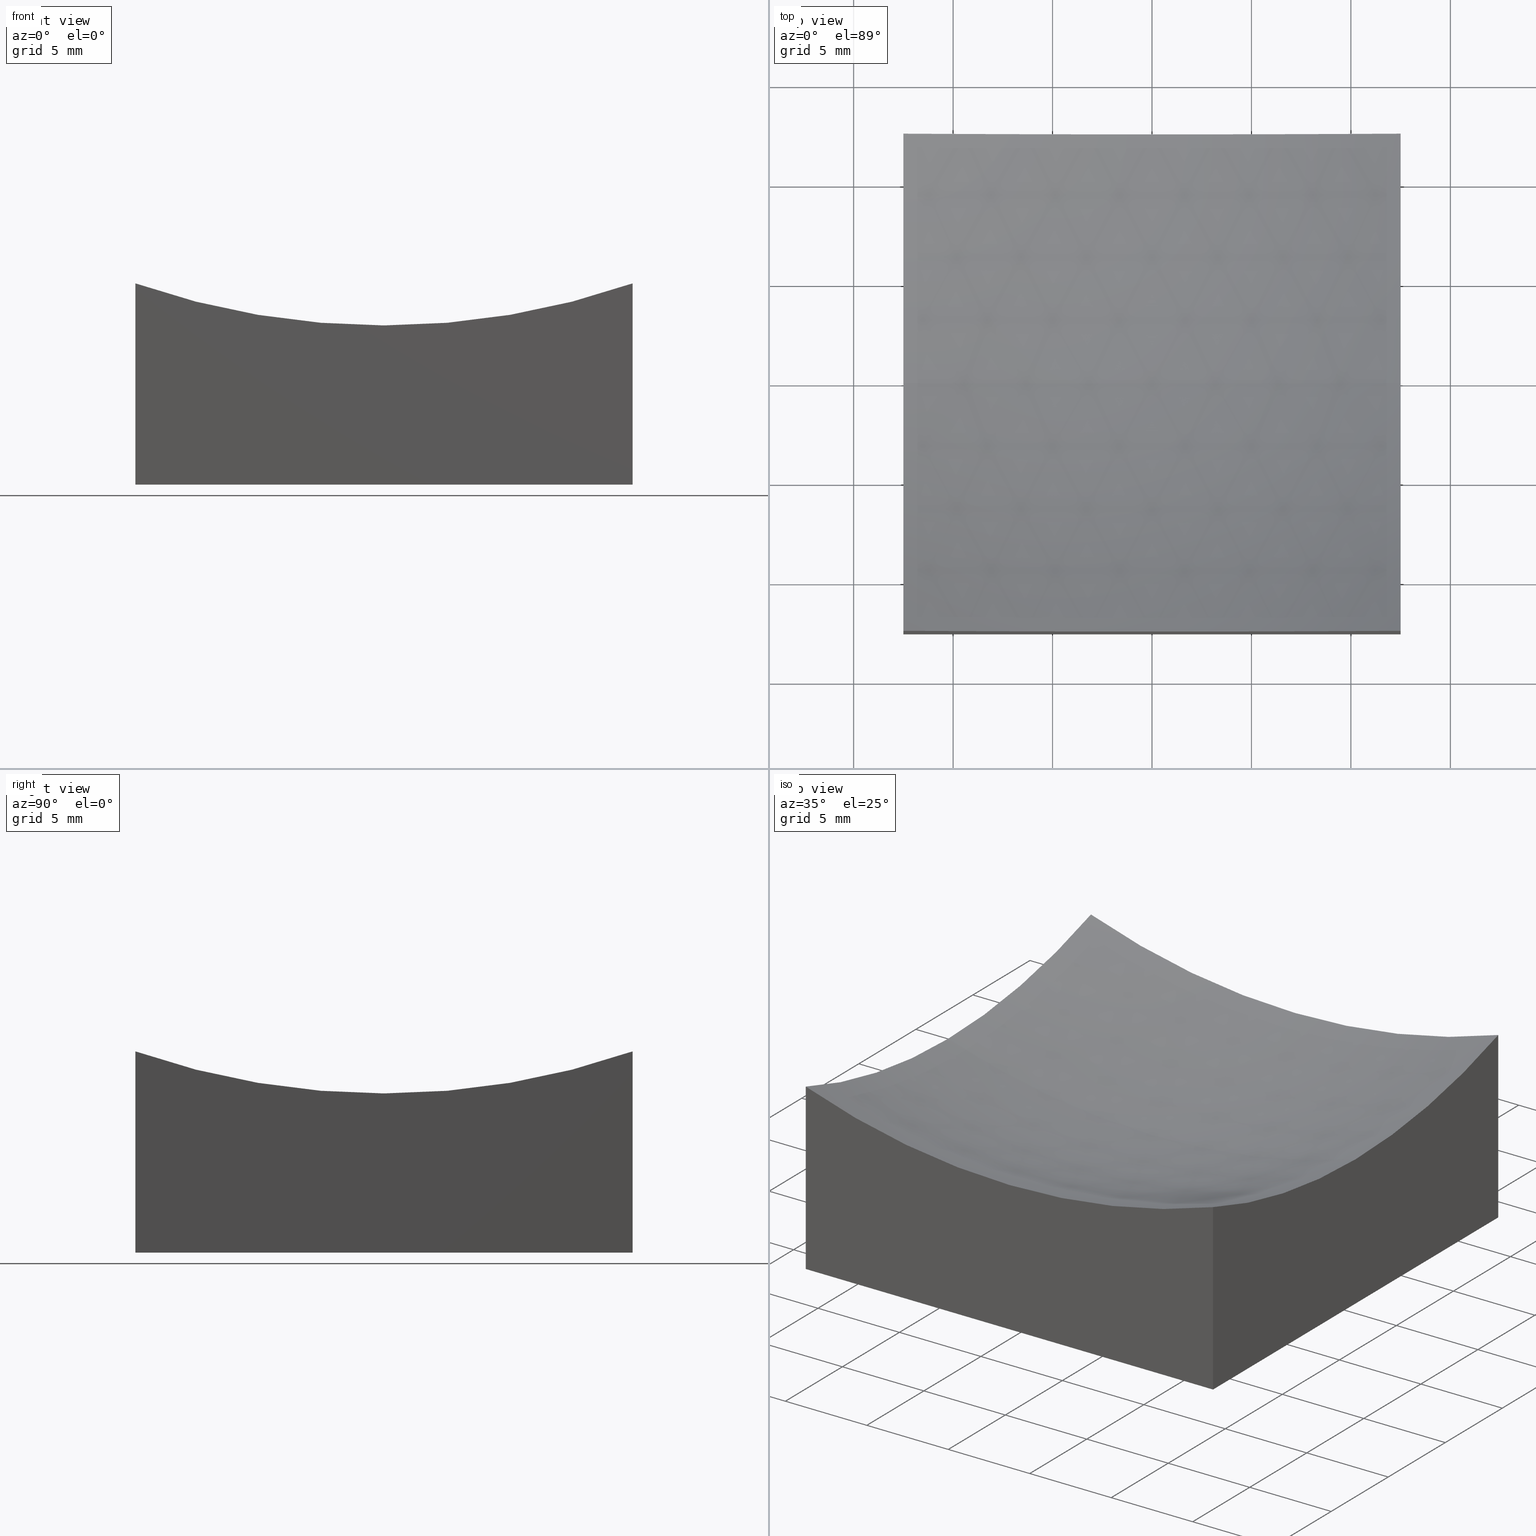
[diagram: canonical four-view strip — front | top / right | iso, engineering-drawing reading convention]
A machine part, canonical four-view strip (front | top / right | iso — engineering-drawing reading convention). The complete STEP part file that produces these views, byte-faithful:
ISO-10303-21;
HEADER;
FILE_DESCRIPTION (( 'STEP AP214' ),
    '1' );
FILE_NAME ('270031.STEP',
    '2020-06-05T05:34:53',
    ( '' ),
    ( '' ),
    'SwSTEP 2.0',
    'SolidWorks 2019',
    '' );
FILE_SCHEMA (( 'AUTOMOTIVE_DESIGN' ));
ENDSEC;

DATA;
#1 =( LENGTH_UNIT ( ) NAMED_UNIT ( * ) SI_UNIT ( .MILLI., .METRE. ) );
#2 = ORIENTED_EDGE ( 'NONE', *, *, #120, .T. ) ;
#3 = ORIENTED_EDGE ( 'NONE', *, *, #26, .F. ) ;
#4 = FILL_AREA_STYLE_COLOUR ( '', #202 ) ;
#5 = AXIS2_PLACEMENT_3D ( 'NONE', #14, #232, #54 ) ;
#6 = EDGE_LOOP ( 'NONE', ( #153, #200, #25, #47, #182 ) ) ;
#7 = DIRECTION ( 'NONE',  ( -0.0000000000000000000, 1.000000000000000000, 0.0000000000000000000 ) ) ;
#8 = PRODUCT_CONTEXT ( 'NONE', #136, 'mechanical' ) ;
#9 = EDGE_LOOP ( 'NONE', ( #102, #162, #160, #222, #62 ) ) ;
#10 = PRESENTATION_LAYER_ASSIGNMENT (  '', '', ( #212 ) ) ;
#11 = CARTESIAN_POINT ( 'NONE',  ( 12.50000000000000000, 12.50000000000000000, 0.0000000000000000000 ) ) ;
#12 = DIRECTION ( 'NONE',  ( 1.000000000000000000, 0.0000000000000000000, 0.0000000000000000000 ) ) ;
#13 = PRESENTATION_STYLE_ASSIGNMENT (( #191 ) ) ;
#14 = CARTESIAN_POINT ( 'NONE',  ( -12.49999999999999645, -12.50000000000000000, 20.00000000000000000 ) ) ;
#15 = AXIS2_PLACEMENT_3D ( 'NONE', #89, #35, #106 ) ;
#16 = DIRECTION ( 'NONE',  ( 0.0000000000000000000, 1.000000000000000000, 0.0000000000000000000 ) ) ;
#17 = APPLICATION_CONTEXT ( 'automotive_design' ) ;
#18 = AXIS2_PLACEMENT_3D ( 'NONE', #183, #7, #84 ) ;
#19 = CARTESIAN_POINT ( 'NONE',  ( 5.633375276077824704E-15, 0.0000000000000000000, 46.00000000000000000 ) ) ;
#21 = LINE ( 'NONE', #163, #55 ) ;
#20 = ADVANCED_BREP_SHAPE_REPRESENTATION ( '270031', ( #151, #87 ), #27 ) ;
#22 = CIRCLE ( 'NONE', #63, 37.99671038392666844 ) ;
#23 = PRESENTATION_STYLE_ASSIGNMENT (( #40 ) ) ;
#24 = VERTEX_POINT ( 'NONE', #143 ) ;
#25 = ORIENTED_EDGE ( 'NONE', *, *, #154, .F. ) ;
#26 = EDGE_CURVE ( 'NONE', #132, #46, #234, .T. ) ;
#27 =( GEOMETRIC_REPRESENTATION_CONTEXT ( 3 ) GLOBAL_UNCERTAINTY_ASSIGNED_CONTEXT ( ( #38 ) ) GLOBAL_UNIT_ASSIGNED_CONTEXT ( ( #43, #155, #65 ) ) REPRESENTATION_CONTEXT ( 'NONE', 'WORKASPACE' ) );
#28 = ORIENTED_EDGE ( 'NONE', *, *, #56, .F. ) ;
#29 = ORIENTED_EDGE ( 'NONE', *, *, #226, .T. ) ;
#30 = CARTESIAN_POINT ( 'NONE',  ( 12.50000000000000355, -12.50000000000000000, 20.00000000000000000 ) ) ;
#31 = SHAPE_DEFINITION_REPRESENTATION ( #111, #20 ) ;
#32 =( GEOMETRIC_REPRESENTATION_CONTEXT ( 3 ) GLOBAL_UNCERTAINTY_ASSIGNED_CONTEXT ( ( #138 ) ) GLOBAL_UNIT_ASSIGNED_CONTEXT ( ( #231, #206, #188 ) ) REPRESENTATION_CONTEXT ( 'NONE', 'WORKASPACE' ) );
#33 = DIRECTION ( 'NONE',  ( 1.387778780781445676E-16, -1.000000000000000000, 0.0000000000000000000 ) ) ;
#34 = FILL_AREA_STYLE ('',( #71 ) ) ;
#35 = DIRECTION ( 'NONE',  ( 0.0000000000000000000, -1.000000000000000000, -0.0000000000000000000 ) ) ;
#36 = ADVANCED_FACE ( 'NONE', ( #220 ), #203, .F. ) ;
#37 = EDGE_CURVE ( 'NONE', #132, #81, #22, .T. ) ;
#38 = UNCERTAINTY_MEASURE_WITH_UNIT (LENGTH_MEASURE( 1.000000000000000082E-05 ), #43, 'distance_accuracy_value', 'NONE');
#39 = VECTOR ( 'NONE', #237, 1000.000000000000000 ) ;
#40 = SURFACE_STYLE_USAGE ( .BOTH. , #195 ) ;
#41 = CARTESIAN_POINT ( 'NONE',  ( -12.49999999999999645, -12.50000000000000000, 0.0000000000000000000 ) ) ;
#42 = EDGE_CURVE ( 'NONE', #140, #184, #238, .T. ) ;
#43 =( LENGTH_UNIT ( ) NAMED_UNIT ( * ) SI_UNIT ( .MILLI., .METRE. ) );
#44 = PRODUCT_DEFINITION_CONTEXT ( 'detailed design', #17, 'design' ) ;
#45 = AXIS2_PLACEMENT_3D ( 'NONE', #251, #59, #218 ) ;
#46 = VERTEX_POINT ( 'NONE', #85 ) ;
#47 = ORIENTED_EDGE ( 'NONE', *, *, #37, .F. ) ;
#48 = CARTESIAN_POINT ( 'NONE',  ( 12.50000000000000178, 1.734723475976806700E-15, 46.00000000000000000 ) ) ;
#49 = VERTEX_POINT ( 'NONE', #166 ) ;
#50 = DIRECTION ( 'NONE',  ( 0.0000000000000000000, 0.0000000000000000000, 1.000000000000000000 ) ) ;
#51 = MECHANICAL_DESIGN_GEOMETRIC_PRESENTATION_REPRESENTATION (  '', ( #212 ), #32 ) ;
#52 = CARTESIAN_POINT ( 'NONE',  ( -12.50000000000000000, 12.50000000000000000, 0.0000000000000000000 ) ) ;
#53 = FACE_OUTER_BOUND ( 'NONE', #144, .T. ) ;
#54 = DIRECTION ( 'NONE',  ( 0.0000000000000000000, -0.0000000000000000000, 1.000000000000000000 ) ) ;
#55 = VECTOR ( 'NONE', #176, 1000.000000000000000 ) ;
#56 = EDGE_CURVE ( 'NONE', #132, #216, #127, .T. ) ;
#57 = EDGE_LOOP ( 'NONE', ( #145, #205, #193, #126 ) ) ;
#58 = UNCERTAINTY_MEASURE_WITH_UNIT (LENGTH_MEASURE( 1.000000000000000082E-05 ), #1, 'distance_accuracy_value', 'NONE');
#59 = DIRECTION ( 'NONE',  ( 1.000000000000000000, 1.387778780781445676E-16, -0.0000000000000000000 ) ) ;
#60 = MECHANICAL_DESIGN_GEOMETRIC_PRESENTATION_REPRESENTATION (  '', ( #171 ), #196 ) ;
#61 = LINE ( 'NONE', #139, #149 ) ;
#62 = ORIENTED_EDGE ( 'NONE', *, *, #146, .T. ) ;
#63 = AXIS2_PLACEMENT_3D ( 'NONE', #124, #121, #50 ) ;
#64 = ORIENTED_EDGE ( 'NONE', *, *, #146, .F. ) ;
#65 =( NAMED_UNIT ( * ) SI_UNIT ( $, .STERADIAN. ) SOLID_ANGLE_UNIT ( ) );
#66 = ORIENTED_EDGE ( 'NONE', *, *, #133, .T. ) ;
#67 = DIRECTION ( 'NONE',  ( 1.000000000000000000, 1.387778780781445676E-16, -0.0000000000000000000 ) ) ;
#68 = PRESENTATION_LAYER_ASSIGNMENT (  '', '', ( #171 ) ) ;
#69 = ORIENTED_EDGE ( 'NONE', *, *, #226, .F. ) ;
#70 = PRODUCT_RELATED_PRODUCT_CATEGORY ( 'part', '', ( #129 ) ) ;
#71 = FILL_AREA_STYLE_COLOUR ( '', #82 ) ;
#72 = PLANE ( 'NONE',  #112 ) ;
#73 = VECTOR ( 'NONE', #157, 1000.000000000000000 ) ;
#74 = CARTESIAN_POINT ( 'NONE',  ( 12.50000000000000355, -12.50000000000000000, 10.11824976398168552 ) ) ;
#75 = CARTESIAN_POINT ( 'NONE',  ( 0.0000000000000000000, 0.0000000000000000000, 0.0000000000000000000 ) ) ;
#76 = CIRCLE ( 'NONE', #96, 37.99671038392665423 ) ;
#77 = ADVANCED_FACE ( 'NONE', ( #128 ), #150, .T. ) ;
#78 = FILL_AREA_STYLE ('',( #4 ) ) ;
#79 = VECTOR ( 'NONE', #97, 1000.000000000000000 ) ;
#80 = DIRECTION ( 'NONE',  ( 1.000000000000000000, 1.387778780781445676E-16, -0.0000000000000000000 ) ) ;
#81 = VERTEX_POINT ( 'NONE', #228 ) ;
#82 = COLOUR_RGB ( '',1.000000000000000000, 1.000000000000000000, 1.000000000000000000 ) ;
#83 = ORIENTED_EDGE ( 'NONE', *, *, #194, .T. ) ;
#84 = DIRECTION ( 'NONE',  ( 1.000000000000000000, 0.0000000000000000000, 0.0000000000000000000 ) ) ;
#85 = CARTESIAN_POINT ( 'NONE',  ( 12.50000000000000178, 0.0000000000000000000, 8.003289616073335111 ) ) ;
#86 = DIRECTION ( 'NONE',  ( 0.0000000000000000000, 0.0000000000000000000, 1.000000000000000000 ) ) ;
#87 = AXIS2_PLACEMENT_3D ( 'NONE', #204, #86, #12 ) ;
#88 = DIRECTION ( 'NONE',  ( 1.000000000000000000, 1.387778780781445676E-16, -0.0000000000000000000 ) ) ;
#89 = CARTESIAN_POINT ( 'NONE',  ( 5.633375276077824704E-15, 0.0000000000000000000, 46.00000000000000000 ) ) ;
#90 = ADVANCED_FACE ( 'NONE', ( #186 ), #230, .F. ) ;
#91 = DIRECTION ( 'NONE',  ( 1.000000000000000000, 1.387778780781445676E-16, -0.0000000000000000000 ) ) ;
#92 = DIRECTION ( 'NONE',  ( -1.387778780781445676E-16, 1.000000000000000000, 0.0000000000000000000 ) ) ;
#93 = CLOSED_SHELL ( 'NONE', ( #36, #158, #90, #190, #77, #185, #242 ) ) ;
#94 = CARTESIAN_POINT ( 'NONE',  ( -12.49999999999999822, -1.734723475976807883E-15, 46.00000000000000000 ) ) ;
#95 = DIRECTION ( 'NONE',  ( 0.0000000000000000000, 1.000000000000000000, 0.0000000000000000000 ) ) ;
#96 = AXIS2_PLACEMENT_3D ( 'NONE', #94, #80, #217 ) ;
#97 = DIRECTION ( 'NONE',  ( 1.000000000000000000, 0.0000000000000000000, 0.0000000000000000000 ) ) ;
#98 = VERTEX_POINT ( 'NONE', #11 ) ;
#99 = APPLICATION_PROTOCOL_DEFINITION ( 'draft international standard', 'automotive_design', 1998, #136 ) ;
#100 = ORIENTED_EDGE ( 'NONE', *, *, #56, .T. ) ;
#101 = AXIS2_PLACEMENT_3D ( 'NONE', #233, #91, #104 ) ;
#102 = ORIENTED_EDGE ( 'NONE', *, *, #120, .F. ) ;
#103 = ORIENTED_EDGE ( 'NONE', *, *, #252, .F. ) ;
#104 = DIRECTION ( 'NONE',  ( -1.387778780781445676E-16, 1.000000000000000000, 0.0000000000000000000 ) ) ;
#105 = AXIS2_PLACEMENT_3D ( 'NONE', #19, #221, #235 ) ;
#106 = DIRECTION ( 'NONE',  ( 0.0000000000000000000, 0.0000000000000000000, -1.000000000000000000 ) ) ;
#107 = DIRECTION ( 'NONE',  ( 1.000000000000000000, 1.387778780781445676E-16, -0.0000000000000000000 ) ) ;
#108 = VECTOR ( 'NONE', #178, 1000.000000000000000 ) ;
#109 = FACE_OUTER_BOUND ( 'NONE', #57, .T. ) ;
#110 = ORIENTED_EDGE ( 'NONE', *, *, #229, .T. ) ;
#111 = PRODUCT_DEFINITION_SHAPE ( 'NONE', 'NONE',  #250 ) ;
#112 = AXIS2_PLACEMENT_3D ( 'NONE', #209, #16, #134 ) ;
#113 = VERTEX_POINT ( 'NONE', #168 ) ;
#114 = LINE ( 'NONE', #175, #73 ) ;
#115 = CARTESIAN_POINT ( 'NONE',  ( 12.50000000000000000, 12.50000000000000000, 0.0000000000000000000 ) ) ;
#116 = SURFACE_STYLE_FILL_AREA ( #78 ) ;
#117 = ORIENTED_EDGE ( 'NONE', *, *, #37, .T. ) ;
#118 = PRODUCT_DEFINITION_FORMATION_WITH_SPECIFIED_SOURCE ( '�κ�', '', #129, .NOT_KNOWN. ) ;
#119 =( NAMED_UNIT ( * ) SI_UNIT ( $, .STERADIAN. ) SOLID_ANGLE_UNIT ( ) );
#120 = EDGE_CURVE ( 'NONE', #81, #113, #189, .T. ) ;
#121 = DIRECTION ( 'NONE',  ( 0.0000000000000000000, 1.000000000000000000, 0.0000000000000000000 ) ) ;
#122 = FACE_OUTER_BOUND ( 'NONE', #180, .T. ) ;
#123 = ORIENTED_EDGE ( 'NONE', *, *, #215, .F. ) ;
#124 = CARTESIAN_POINT ( 'NONE',  ( 5.633375276077824704E-15, -12.50000000000000000, 46.00000000000000000 ) ) ;
#125 = AXIS2_PLACEMENT_3D ( 'NONE', #247, #107, #169 ) ;
#126 = ORIENTED_EDGE ( 'NONE', *, *, #208, .F. ) ;
#127 = LINE ( 'NONE', #30, #108 ) ;
#128 = FACE_OUTER_BOUND ( 'NONE', #236, .T. ) ;
#129 = PRODUCT ( '270031', '270031', '', ( #8 ) ) ;
#130 = PLANE ( 'NONE',  #174 ) ;
#131 = CARTESIAN_POINT ( 'NONE',  ( -12.50000000000000000, 12.50000000000000000, 10.11824976398169262 ) ) ;
#132 = VERTEX_POINT ( 'NONE', #74 ) ;
#133 = EDGE_CURVE ( 'NONE', #140, #46, #161, .T. ) ;
#134 = DIRECTION ( 'NONE',  ( 0.0000000000000000000, -0.0000000000000000000, 1.000000000000000000 ) ) ;
#135 = DIRECTION ( 'NONE',  ( -0.0000000000000000000, -0.0000000000000000000, -1.000000000000000000 ) ) ;
#136 = APPLICATION_CONTEXT ( 'automotive_design' ) ;
#137 = CARTESIAN_POINT ( 'NONE',  ( 5.633375276077824704E-15, 12.50000000000000000, 46.00000000000000000 ) ) ;
#138 = UNCERTAINTY_MEASURE_WITH_UNIT (LENGTH_MEASURE( 1.000000000000000082E-05 ), #231, 'distance_accuracy_value', 'NONE');
#139 = CARTESIAN_POINT ( 'NONE',  ( -12.50000000000000000, 12.50000000000000000, 20.00000000000000000 ) ) ;
#140 = VERTEX_POINT ( 'NONE', #245 ) ;
#141 = LINE ( 'NONE', #41, #79 ) ;
#142 = VERTEX_POINT ( 'NONE', #131 ) ;
#143 = CARTESIAN_POINT ( 'NONE',  ( 12.50000000000000000, 12.50000000000000000, 10.11824976398168552 ) ) ;
#144 = EDGE_LOOP ( 'NONE', ( #110, #29, #244, #64 ) ) ;
#145 = ORIENTED_EDGE ( 'NONE', *, *, #197, .F. ) ;
#146 = EDGE_CURVE ( 'NONE', #49, #113, #211, .T. ) ;
#147 = SURFACE_SIDE_STYLE ('',( #246 ) ) ;
#148 = CARTESIAN_POINT ( 'NONE',  ( 12.50000000000000000, 12.50000000000000000, 20.00000000000000000 ) ) ;
#149 = VECTOR ( 'NONE', #135, 1000.000000000000000 ) ;
#150 = PLANE ( 'NONE',  #167 ) ;
#151 = MANIFOLD_SOLID_BREP ( '�г�-��ת2', #93 ) ;
#152 = VECTOR ( 'NONE', #33, 1000.000000000000000 ) ;
#153 = ORIENTED_EDGE ( 'NONE', *, *, #133, .F. ) ;
#154 = EDGE_CURVE ( 'NONE', #81, #184, #213, .T. ) ;
#155 =( NAMED_UNIT ( * ) PLANE_ANGLE_UNIT ( ) SI_UNIT ( $, .RADIAN. ) );
#156 = CIRCLE ( 'NONE', #45, 37.99671038392666134 ) ;
#157 = DIRECTION ( 'NONE',  ( 1.000000000000000000, 0.0000000000000000000, 0.0000000000000000000 ) ) ;
#158 = ADVANCED_FACE ( 'NONE', ( #109 ), #72, .T. ) ;
#159 =( NAMED_UNIT ( * ) PLANE_ANGLE_UNIT ( ) SI_UNIT ( $, .RADIAN. ) );
#160 = ORIENTED_EDGE ( 'NONE', *, *, #215, .T. ) ;
#161 = CIRCLE ( 'NONE', #15, 40.00000000000000000 ) ;
#162 = ORIENTED_EDGE ( 'NONE', *, *, #154, .T. ) ;
#163 = CARTESIAN_POINT ( 'NONE',  ( 12.50000000000000000, 12.50000000000000000, 20.00000000000000000 ) ) ;
#164 = ORIENTED_EDGE ( 'NONE', *, *, #197, .T. ) ;
#165 = DIRECTION ( 'NONE',  ( 1.224646799147353207E-16, 1.000000000000000000, -5.143359600162762800E-33 ) ) ;
#166 = CARTESIAN_POINT ( 'NONE',  ( -12.50000000000000000, 12.50000000000000000, 0.0000000000000000000 ) ) ;
#167 = AXIS2_PLACEMENT_3D ( 'NONE', #148, #88, #92 ) ;
#168 = CARTESIAN_POINT ( 'NONE',  ( -12.49999999999999645, -12.50000000000000000, 0.0000000000000000000 ) ) ;
#169 = DIRECTION ( 'NONE',  ( -1.369637101566530917E-16, 1.000000000000000000, 0.0000000000000000000 ) ) ;
#170 = CARTESIAN_POINT ( 'NONE',  ( -12.49999999999999822, 1.530808498934191521E-15, 8.003289616073342216 ) ) ;
#171 = STYLED_ITEM ( 'NONE', ( #23 ), #20 ) ;
#172 = CARTESIAN_POINT ( 'NONE',  ( -12.49999999999999645, -12.50000000000000000, 20.00000000000000000 ) ) ;
#173 = PLANE ( 'NONE',  #5 ) ;
#174 = AXIS2_PLACEMENT_3D ( 'NONE', #75, #210, #192 ) ;
#175 = CARTESIAN_POINT ( 'NONE',  ( -12.50000000000000000, 12.50000000000000000, 0.0000000000000000000 ) ) ;
#176 = DIRECTION ( 'NONE',  ( -0.0000000000000000000, -0.0000000000000000000, -1.000000000000000000 ) ) ;
#177 = CARTESIAN_POINT ( 'NONE',  ( 12.50000000000000355, -12.50000000000000000, 0.0000000000000000000 ) ) ;
#178 = DIRECTION ( 'NONE',  ( -0.0000000000000000000, -0.0000000000000000000, -1.000000000000000000 ) ) ;
#179 = DIRECTION ( 'NONE',  ( 0.0000000000000000000, 0.0000000000000000000, 1.000000000000000000 ) ) ;
#180 = EDGE_LOOP ( 'NONE', ( #223, #66, #83, #164, #123 ) ) ;
#181 = VECTOR ( 'NONE', #214, 1000.000000000000000 ) ;
#182 = ORIENTED_EDGE ( 'NONE', *, *, #26, .T. ) ;
#183 = CARTESIAN_POINT ( 'NONE',  ( 5.633375276077824704E-15, 0.0000000000000000000, 46.00000000000000000 ) ) ;
#184 = VERTEX_POINT ( 'NONE', #170 ) ;
#185 = ADVANCED_FACE ( 'NONE', ( #53 ), #130, .T. ) ;
#186 = FACE_OUTER_BOUND ( 'NONE', #9, .T. ) ;
#187 = CIRCLE ( 'NONE', #248, 37.99671038392666844 ) ;
#188 =( NAMED_UNIT ( * ) SI_UNIT ( $, .STERADIAN. ) SOLID_ANGLE_UNIT ( ) );
#189 = LINE ( 'NONE', #172, #181 ) ;
#190 = ADVANCED_FACE ( 'NONE', ( #249 ), #173, .F. ) ;
#191 = SURFACE_STYLE_USAGE ( .BOTH. , #147 ) ;
#192 = DIRECTION ( 'NONE',  ( -1.000000000000000000, 0.0000000000000000000, -0.0000000000000000000 ) ) ;
#193 = ORIENTED_EDGE ( 'NONE', *, *, #229, .F. ) ;
#194 = EDGE_CURVE ( 'NONE', #46, #24, #156, .T. ) ;
#195 = SURFACE_SIDE_STYLE ('',( #116 ) ) ;
#196 =( GEOMETRIC_REPRESENTATION_CONTEXT ( 3 ) GLOBAL_UNCERTAINTY_ASSIGNED_CONTEXT ( ( #58 ) ) GLOBAL_UNIT_ASSIGNED_CONTEXT ( ( #1, #159, #119 ) ) REPRESENTATION_CONTEXT ( 'NONE', 'WORKASPACE' ) );
#197 = EDGE_CURVE ( 'NONE', #24, #142, #187, .T. ) ;
#198 = CARTESIAN_POINT ( 'NONE',  ( 5.633375276077824704E-15, 0.0000000000000000000, 46.00000000000000000 ) ) ;
#199 = SPHERICAL_SURFACE ( 'NONE', #105, 40.00000000000000000 ) ;
#200 = ORIENTED_EDGE ( 'NONE', *, *, #42, .T. ) ;
#201 = APPLICATION_PROTOCOL_DEFINITION ( 'draft international standard', 'automotive_design', 1998, #17 ) ;
#202 = COLOUR_RGB ( '',1.000000000000000000, 1.000000000000000000, 1.000000000000000000 ) ;
#203 = SPHERICAL_SURFACE ( 'NONE', #18, 40.00000000000000000 ) ;
#204 = CARTESIAN_POINT ( 'NONE',  ( 0.0000000000000000000, 0.0000000000000000000, 0.0000000000000000000 ) ) ;
#205 = ORIENTED_EDGE ( 'NONE', *, *, #252, .T. ) ;
#206 =( NAMED_UNIT ( * ) PLANE_ANGLE_UNIT ( ) SI_UNIT ( $, .RADIAN. ) );
#207 = AXIS2_PLACEMENT_3D ( 'NONE', #198, #165, #243 ) ;
#208 = EDGE_CURVE ( 'NONE', #142, #49, #61, .T. ) ;
#209 = CARTESIAN_POINT ( 'NONE',  ( -12.50000000000000000, 12.50000000000000000, 20.00000000000000000 ) ) ;
#210 = DIRECTION ( 'NONE',  ( 0.0000000000000000000, 0.0000000000000000000, -1.000000000000000000 ) ) ;
#211 = LINE ( 'NONE', #52, #152 ) ;
#212 = STYLED_ITEM ( 'NONE', ( #13 ), #151 ) ;
#213 = CIRCLE ( 'NONE', #125, 37.99671038392665423 ) ;
#214 = DIRECTION ( 'NONE',  ( -0.0000000000000000000, -0.0000000000000000000, -1.000000000000000000 ) ) ;
#215 = EDGE_CURVE ( 'NONE', #184, #142, #76, .T. ) ;
#216 = VERTEX_POINT ( 'NONE', #177 ) ;
#217 = DIRECTION ( 'NONE',  ( -1.369637101566530917E-16, 1.000000000000000000, 0.0000000000000000000 ) ) ;
#218 = DIRECTION ( 'NONE',  ( -1.369637101566530670E-16, 1.000000000000000000, 0.0000000000000000000 ) ) ;
#219 = EDGE_CURVE ( 'NONE', #113, #216, #141, .T. ) ;
#220 = FACE_OUTER_BOUND ( 'NONE', #6, .T. ) ;
#221 = DIRECTION ( 'NONE',  ( -0.0000000000000000000, 1.000000000000000000, 0.0000000000000000000 ) ) ;
#222 = ORIENTED_EDGE ( 'NONE', *, *, #208, .T. ) ;
#223 = ORIENTED_EDGE ( 'NONE', *, *, #42, .F. ) ;
#224 = AXIS2_PLACEMENT_3D ( 'NONE', #48, #67, #227 ) ;
#225 = ORIENTED_EDGE ( 'NONE', *, *, #194, .F. ) ;
#226 = EDGE_CURVE ( 'NONE', #98, #216, #240, .T. ) ;
#227 = DIRECTION ( 'NONE',  ( -1.369637101566530670E-16, 1.000000000000000000, 0.0000000000000000000 ) ) ;
#228 = CARTESIAN_POINT ( 'NONE',  ( -12.49999999999999645, -12.50000000000000000, 10.11824976398168552 ) ) ;
#229 = EDGE_CURVE ( 'NONE', #49, #98, #114, .T. ) ;
#230 = PLANE ( 'NONE',  #101 ) ;
#231 =( LENGTH_UNIT ( ) NAMED_UNIT ( * ) SI_UNIT ( .MILLI., .METRE. ) );
#232 = DIRECTION ( 'NONE',  ( 0.0000000000000000000, 1.000000000000000000, 0.0000000000000000000 ) ) ;
#233 = CARTESIAN_POINT ( 'NONE',  ( -12.50000000000000000, 12.50000000000000000, 20.00000000000000000 ) ) ;
#234 = CIRCLE ( 'NONE', #224, 37.99671038392666134 ) ;
#235 = DIRECTION ( 'NONE',  ( 1.000000000000000000, 0.0000000000000000000, 0.0000000000000000000 ) ) ;
#236 = EDGE_LOOP ( 'NONE', ( #3, #100, #69, #103, #225 ) ) ;
#237 = DIRECTION ( 'NONE',  ( 1.387778780781445676E-16, -1.000000000000000000, 0.0000000000000000000 ) ) ;
#238 = CIRCLE ( 'NONE', #207, 40.00000000000000000 ) ;
#239 = EDGE_LOOP ( 'NONE', ( #28, #117, #2, #241 ) ) ;
#240 = LINE ( 'NONE', #115, #39 ) ;
#241 = ORIENTED_EDGE ( 'NONE', *, *, #219, .T. ) ;
#242 = ADVANCED_FACE ( 'NONE', ( #122 ), #199, .F. ) ;
#243 = DIRECTION ( 'NONE',  ( -1.000000000000000000, 1.224646799147353207E-16, 0.0000000000000000000 ) ) ;
#244 = ORIENTED_EDGE ( 'NONE', *, *, #219, .F. ) ;
#245 = CARTESIAN_POINT ( 'NONE',  ( 6.402720140176264670E-15, 0.0000000000000000000, 5.999999999999998224 ) ) ;
#246 = SURFACE_STYLE_FILL_AREA ( #34 ) ;
#247 = CARTESIAN_POINT ( 'NONE',  ( -12.49999999999999822, -1.734723475976807883E-15, 46.00000000000000000 ) ) ;
#248 = AXIS2_PLACEMENT_3D ( 'NONE', #137, #95, #179 ) ;
#249 = FACE_OUTER_BOUND ( 'NONE', #239, .T. ) ;
#250 = PRODUCT_DEFINITION ( 'δ֪', '', #118, #44 ) ;
#251 = CARTESIAN_POINT ( 'NONE',  ( 12.50000000000000178, 1.734723475976806700E-15, 46.00000000000000000 ) ) ;
#252 = EDGE_CURVE ( 'NONE', #24, #98, #21, .T. ) ;
ENDSEC;
END-ISO-10303-21;
